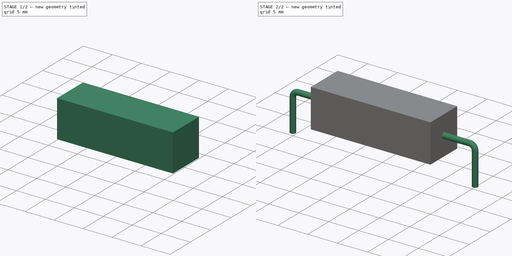
[diagram: build sequence overview — one tinted view per stage of 2, left to right]
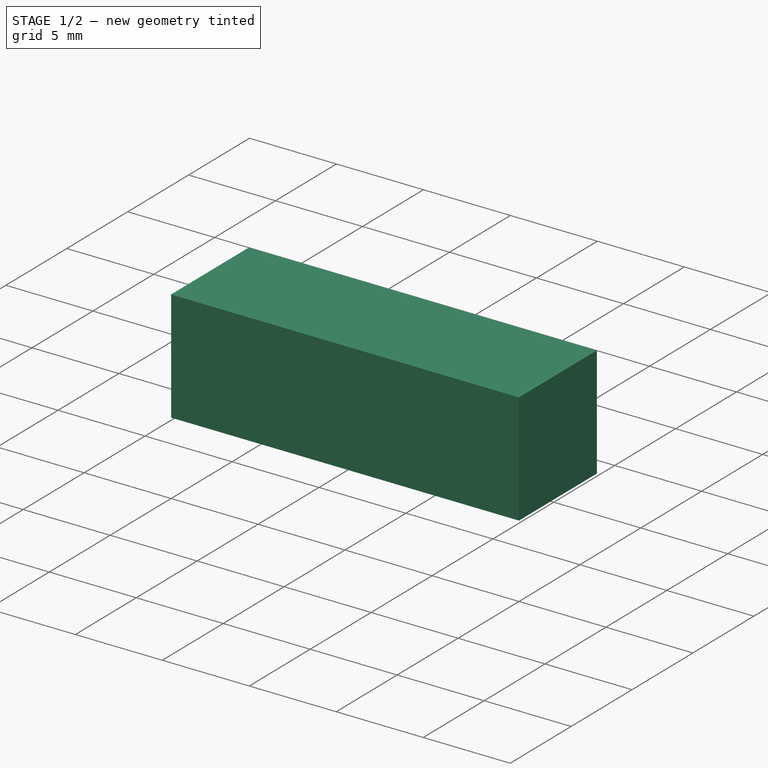
[diagram: stage 1 of 2 — iso view after this stage's code; geometry added in this stage tinted green]
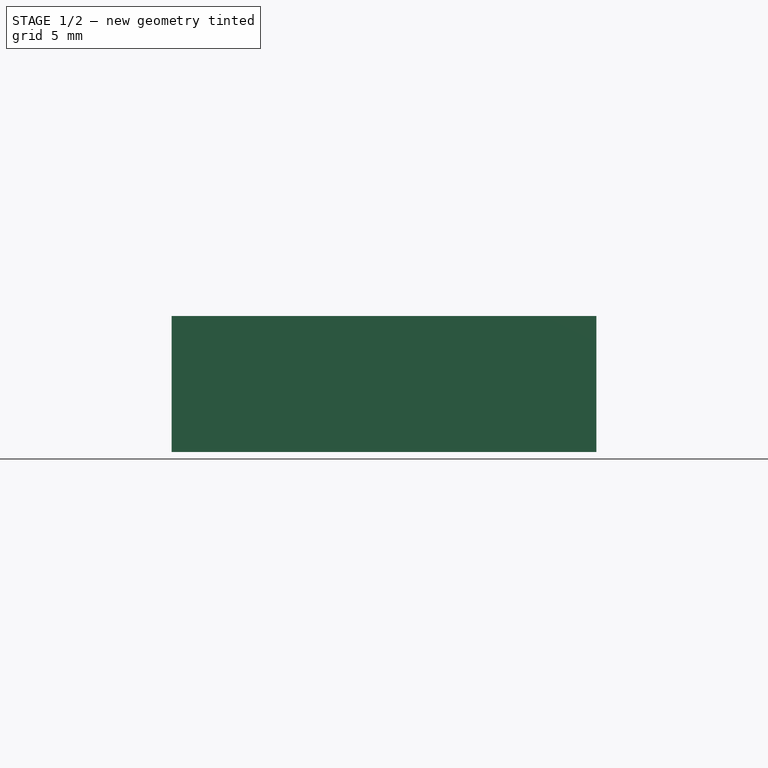
[diagram: stage 1 of 2 — front view after this stage's code; geometry added in this stage tinted green]
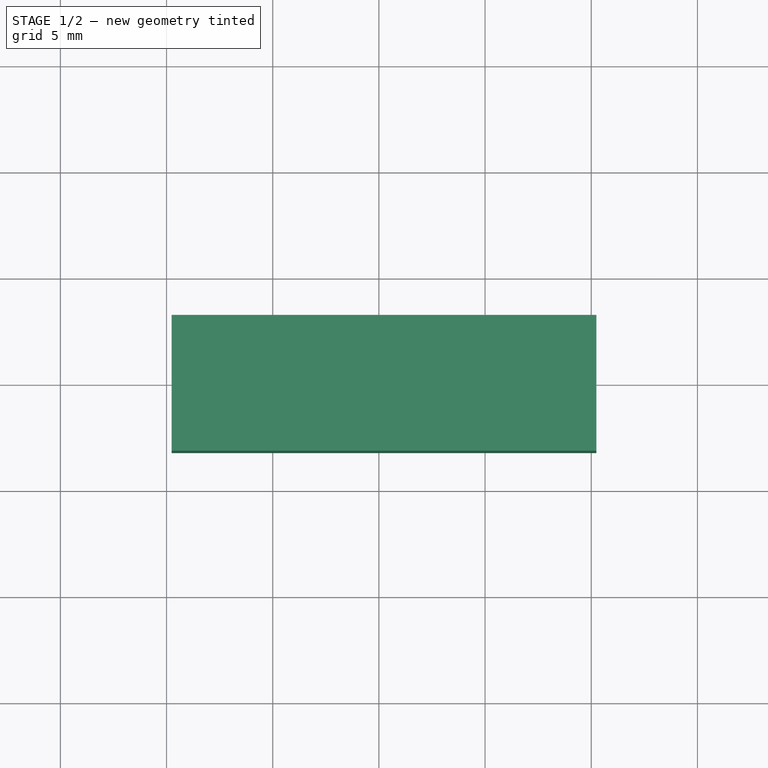
[diagram: stage 1 of 2 — top view after this stage's code; geometry added in this stage tinted green]
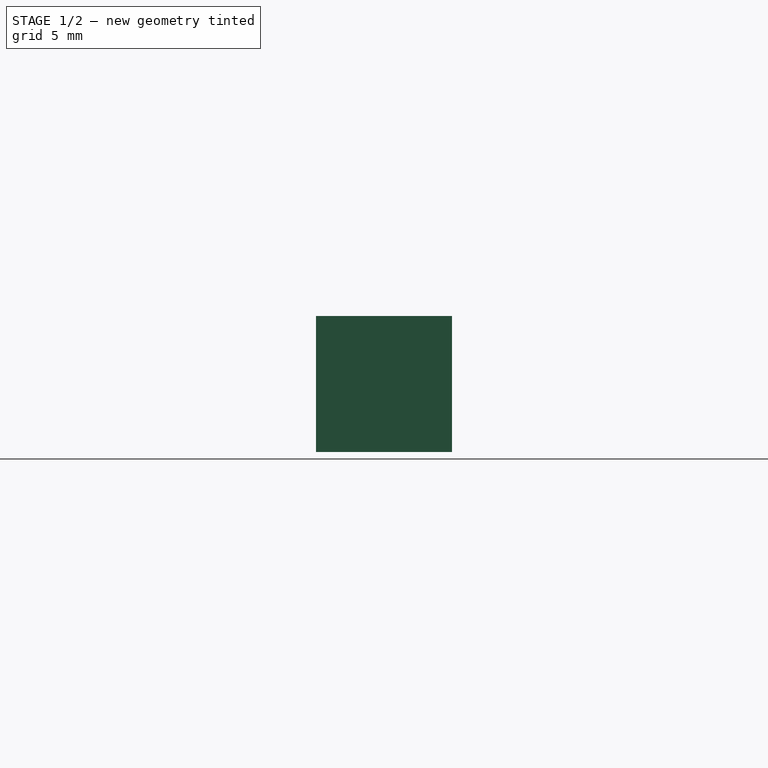
[diagram: stage 1 of 2 — right view after this stage's code; geometry added in this stage tinted green]
FCSTD DOCUMENT  (FreeCAD 0.16R6703 (Git))
Label: Resistor_Axial_Power_L20.0mm_W6.4mm_P30.48mm
License: All rights reserved
LicenseURL: http://en.wikipedia.org/wiki/All_rights_reserved
objects: Sketcher::SketchObject×3, Spreadsheet::Sheet×1, Part::Sweep×1, PartDesign::Pad×1
note: 6 computed .brp shape members not serialized (recipe doc carries the construction recipe); baked Part::Feature solids carry a one-line shape summary decoded from their .brp

FEATURE [Sketcher::SketchObject] Sketch002
  Placement = pos=(0,0,0) rot=(1,0,0;1.5708rad)
  expr: Constraints[11] = (dimensions.RM - dimensions.L) / 2
  expr: Constraints[10] = dimensions.L
  expr: Constraints[9] = dimensions.dd
  sketch-geometry (4):
    g0: LineSegment StartX=5.24 StartY=6.5 StartZ=0 EndX=25.24 EndY=6.5 EndZ=0
    g1: LineSegment StartX=25.24 StartY=6.5 StartZ=0 EndX=25.24 EndY=0.1 EndZ=0
    g2: LineSegment StartX=25.24 StartY=0.1 StartZ=0 EndX=5.24 EndY=0.1 EndZ=0
    g3: LineSegment StartX=5.24 StartY=0.1 StartZ=0 EndX=5.24 EndY=6.5 EndZ=0
  constraints (12):
    c: Coincident(g0,g1)
    c: Coincident(g1,g2)
    c: Coincident(g2,g3)
    c: Coincident(g3,g0)
    c: Horizontal(g0)
    c: Horizontal(g2)
    c: Vertical(g1)
    c: Vertical(g3)
    c: DistanceY(g-1,g2) = 0.1
    c: DistanceY(g3,g3) = 6.4
    c: DistanceX(g0,g0) = 20
    c: DistanceX(g-1,g2) = 5.24
FEATURE [PartDesign::Pad] Pad
  Length = 6.4
  Length2 = 100
  Midplane = true
  Placement = pos=(0,0,0) rot=(1,0,0;1.5708rad)
  Sketch = -> Sketch002
  Type = 0
  expr: Length = dimensions.d
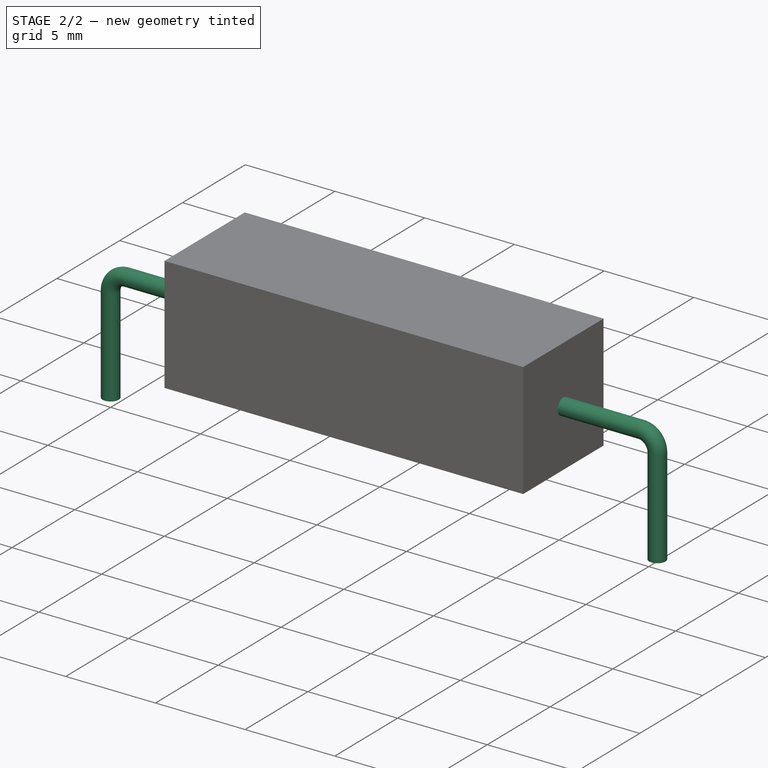
[diagram: stage 2 of 2 — iso view after this stage's code; geometry added in this stage tinted green]
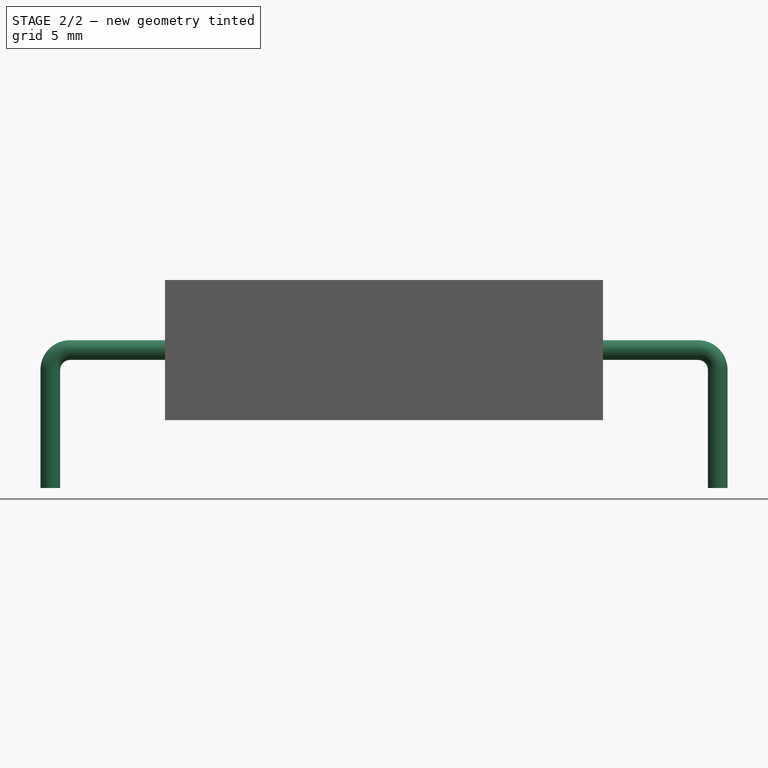
[diagram: stage 2 of 2 — front view after this stage's code; geometry added in this stage tinted green]
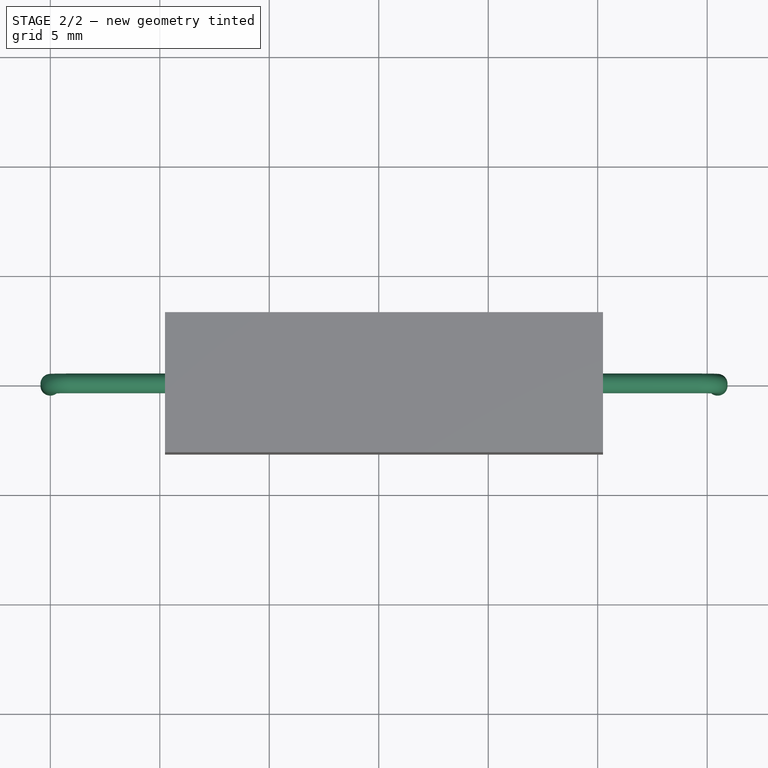
[diagram: stage 2 of 2 — top view after this stage's code; geometry added in this stage tinted green]
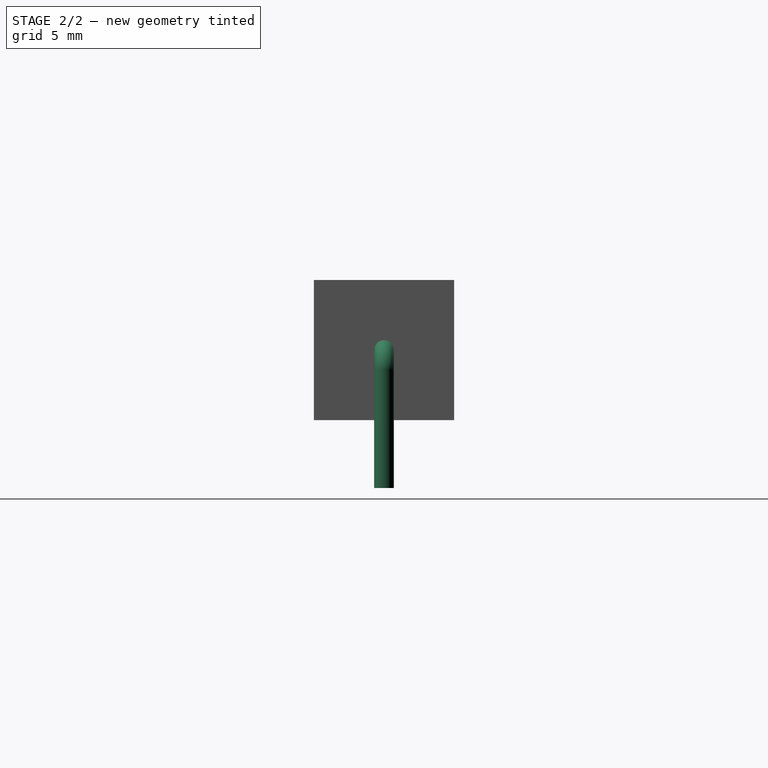
[diagram: stage 2 of 2 — right view after this stage's code; geometry added in this stage tinted green]
FEATURE [Sketcher::SketchObject] Sketch001
  Placement = pos=(0,0,0) rot=(1,0,0;1.5708rad)
  expr: Constraints[15] = dimensions.d_wire
  expr: Constraints[20] = dimensions.d_wire
  expr: Constraints[18] = dimensions.d / 2 + 0.1
  expr: Constraints[12] = dimensions.RM
  expr: Constraints[7] = dimensions.d_wire
  sketch-geometry (7):
    g0: LineSegment StartX=0 StartY=-3 StartZ=0 EndX=0 EndY=2.4 EndZ=0
    g1: ArcOfCircle CenterX=0.9 CenterY=2.4 CenterZ=0 NormalX=0 NormalY=0 NormalZ=1 Radius=0.9 StartAngle=1.5708 EndAngle=3.14159
    g2: LineSegment [constr] StartX=0 StartY=2.4 StartZ=0 EndX=0.9 EndY=2.4 EndZ=0
    g3: LineSegment [constr] StartX=0.9 StartY=2.4 StartZ=0 EndX=0.9 EndY=3.3 EndZ=0
    g4: LineSegment StartX=0.899993 StartY=3.3 StartZ=0 EndX=29.58 EndY=3.3 EndZ=0
    g5: LineSegment StartX=30.48 StartY=2.4 StartZ=0 EndX=30.48 EndY=-3 EndZ=0
    g6: ArcOfCircle CenterX=29.58 CenterY=2.4 CenterZ=0 NormalX=0 NormalY=0 NormalZ=1 Radius=0.9 StartAngle=0 EndAngle=1.5708
  constraints (23):
    c: Vertical(g0)
    c: Coincident(g1,g0)
    c: Coincident(g2,g0)
    c: Coincident(g2,g1)
    c: Horizontal(g2)
    c: Coincident(g3,g1)
    c: Vertical(g3)
    c: DistanceY(g3,g3) = 0.9
    c: Coincident(g4,g1)
    c: Horizontal(g4)
    c: Vertical(g5)
    c: Equal(g5,g0)
    c: DistanceX(g-1,g5) = 30.48
    c: Coincident(g6,g4)
    c: Coincident(g6,g5)
    c: DistanceX(g6,g5) = 0.9
    c: PointOnObject(g0,g-2)
    c: DistanceY(g0,g-1) = 3
    c: DistanceY(g-1,g1) = 3.3
    c: DistanceY(g0,g5) = 0
    c: DistanceX(g0,g1) = 0.9
    c: DistanceX(g6,g4) = 0
    c: DistanceY(g6,g5) = 0
FEATURE [Spreadsheet::Sheet] Spreadsheet  label="dimensions"
  cells = A1=L; B1(L)=20; A2=d; B2(d)=6.4; C2(dd)=6.4; A3=RM; B3(RM)=30.48; A4=d_wire; B4(d_wire)=0.8999999999999999
FEATURE [Sketcher::SketchObject] Sketch
  Placement = pos=(0,0,-2) rot=(0,0,1;0rad)
  expr: Constraints[1] = dimensions.d_wire / 2
  sketch-geometry (1):
    g0: Circle CenterX=0 CenterY=0 CenterZ=0 NormalX=0 NormalY=0 NormalZ=1 Radius=0.45
  constraints (2):
    c: Coincident(g0,g-1)
    c: Radius(g0) = 0.45
FEATURE [Part::Sweep] Sweep
  Frenet = false
  Sections = -> [Sketch]
  Solid = true
  Spine = -> Sketch001
  Transition = 1
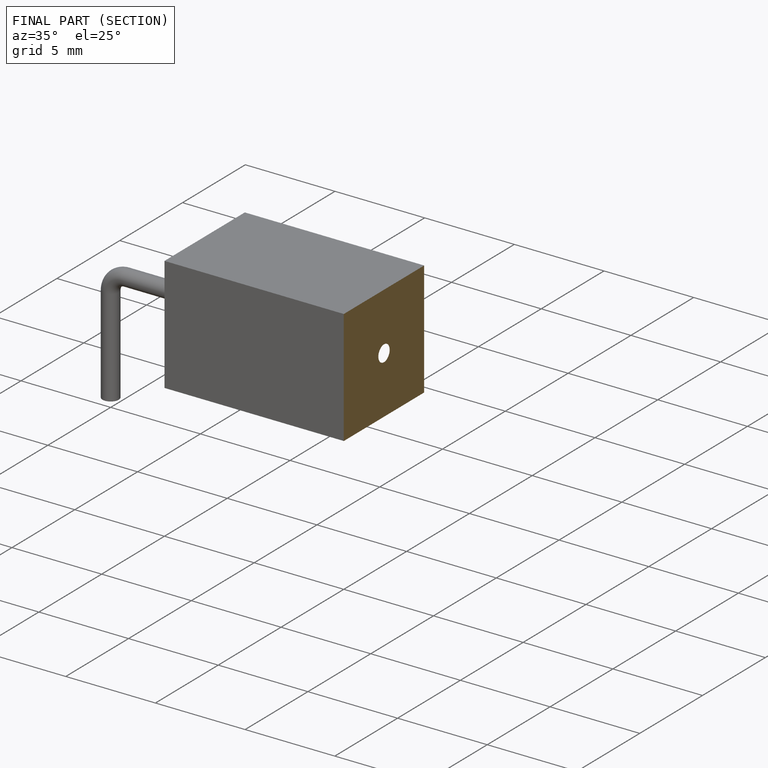
[diagram: finished part — half-section view (interior)]
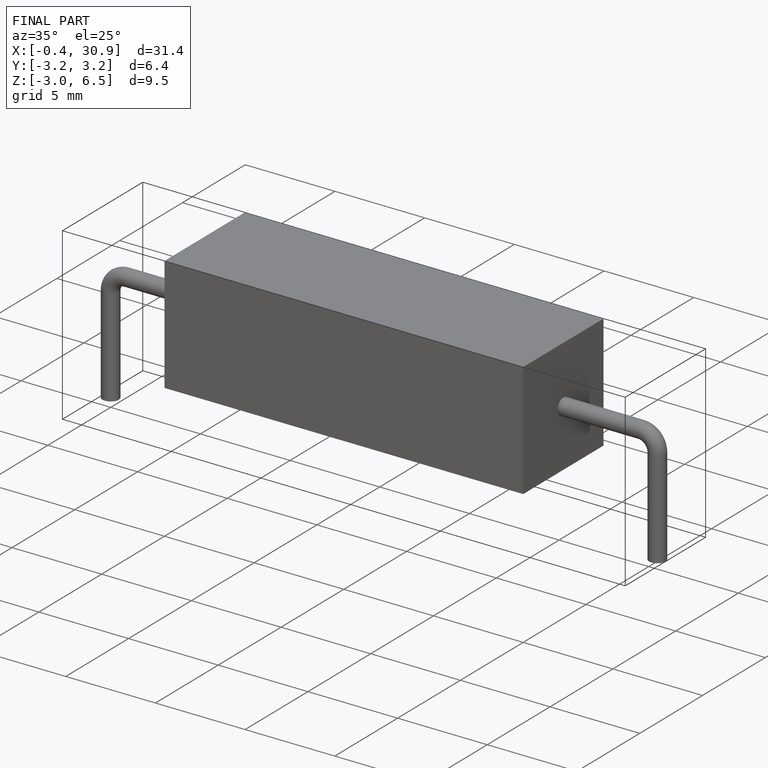
[diagram: finished part — iso view with bounding-box wireframe]
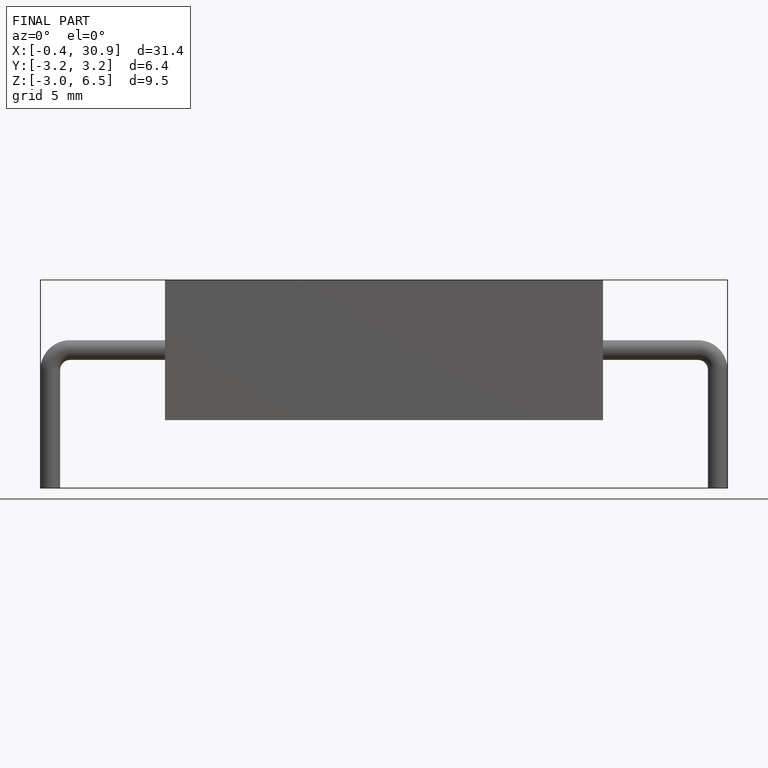
[diagram: finished part — front view with bounding-box wireframe]
